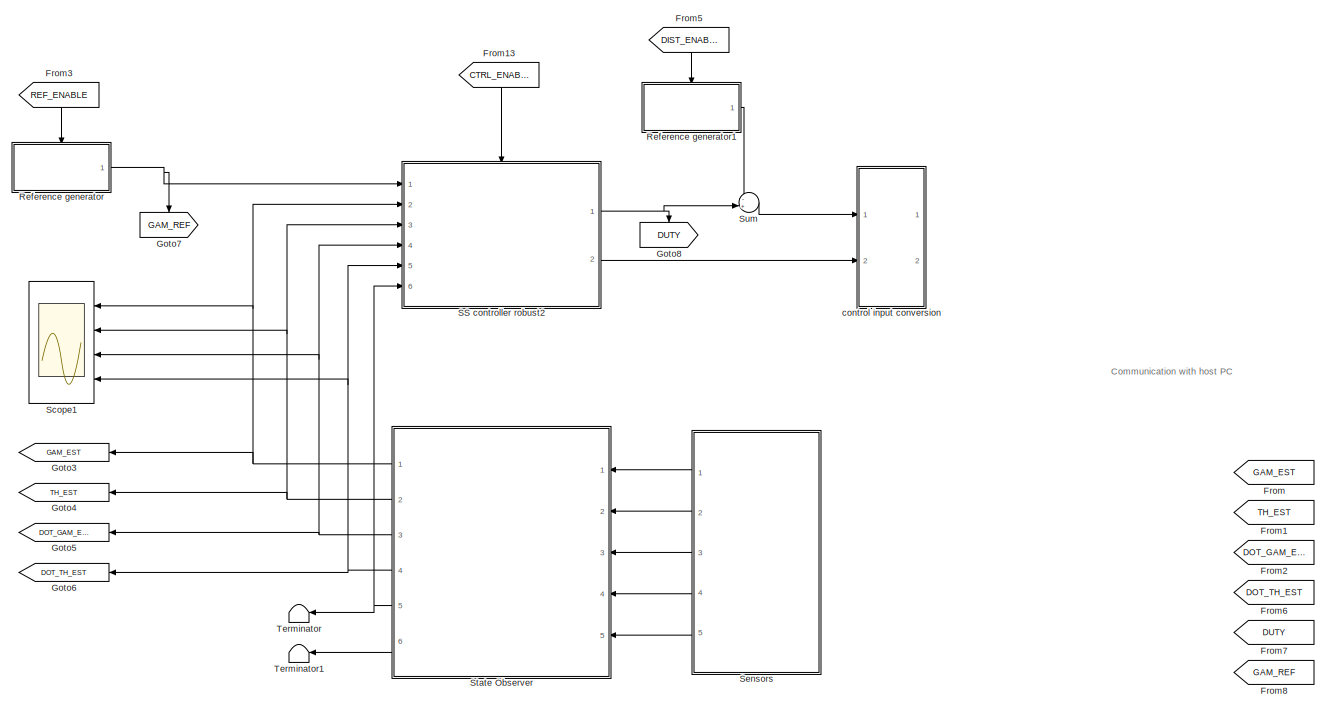
[diagram: root canvas - part 1/2, top center region]
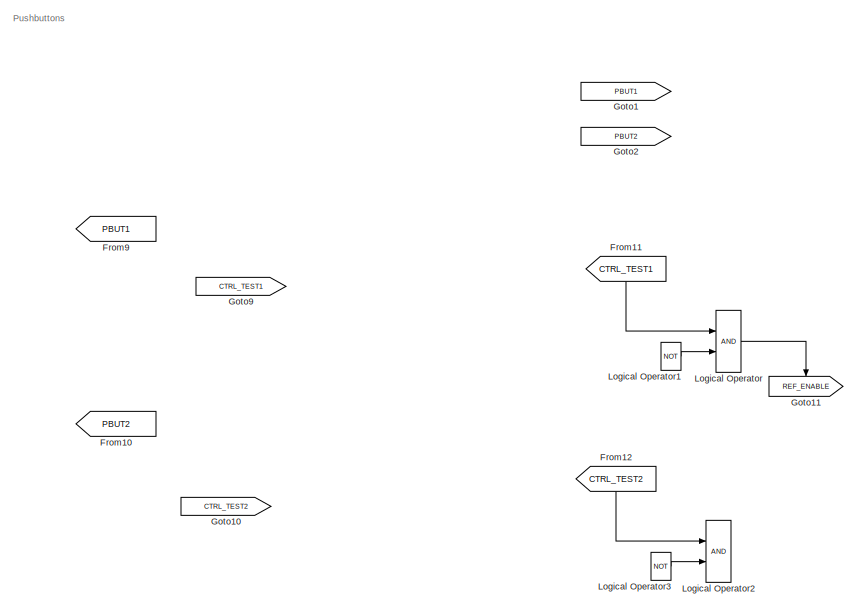
[diagram: root canvas - part 2/2, bottom left region]
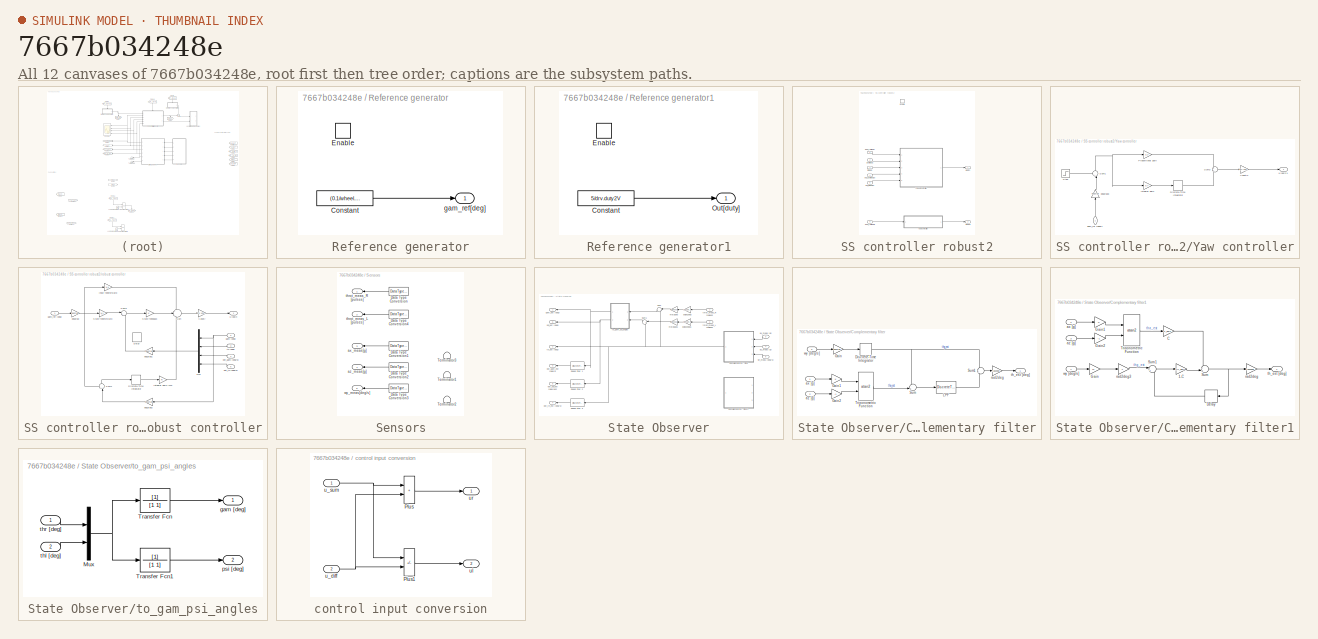
[diagram: thumbnail index - all 12 canvases of the model, root first then tree order]
MODEL slx_7667b034248e
KIND model
CONFIG AbsTol = auto
CONFIG EnableMultiTasking = off
CONFIG FixedStep = auto
CONFIG MaxStep = auto
CONFIG MinStep = auto
CONFIG RelTol = 1e-3
CONFIG SampleTimeConstraint = Unconstrained
CONFIG SolverName = VariableStepAuto
CONFIG StartTime = 0.0
CONFIG StopTime = 10.0
BLOCK [From] From
  GotoTag = GAM_EST
BLOCK [From] From1
  GotoTag = TH_EST
BLOCK [From] From10
  GotoTag = PBUT2
  NameLocation = right
BLOCK [From] From11
  GotoTag = CTRL_TEST1
  NameLocation = right
BLOCK [From] From12
  GotoTag = CTRL_TEST2
  NameLocation = right
BLOCK [From] From13
  GotoTag = CTRL_ENABLE
  NameLocation = right
BLOCK [From] From2
  GotoTag = DOT_GAM_EST
BLOCK [From] From3
  GotoTag = REF_ENABLE
  NameLocation = right
BLOCK [From] From5
  GotoTag = DIST_ENABLE
  NameLocation = right
BLOCK [From] From6
  GotoTag = DOT_TH_EST
BLOCK [From] From7
  GotoTag = DUTY
BLOCK [From] From8
  GotoTag = GAM_REF
BLOCK [From] From9
  GotoTag = PBUT1
  NameLocation = right
BLOCK [Goto] Goto1
  GotoTag = PBUT1
BLOCK [Goto] Goto10
  GotoTag = CTRL_TEST2
BLOCK [Goto] Goto11
  GotoTag = REF_ENABLE
  NameLocation = left
BLOCK [Goto] Goto2
  GotoTag = PBUT2
BLOCK [Goto] Goto3
  GotoTag = GAM_EST
BLOCK [Goto] Goto4
  GotoTag = TH_EST
BLOCK [Goto] Goto5
  GotoTag = DOT_GAM_EST
BLOCK [Goto] Goto6
  GotoTag = DOT_TH_EST
BLOCK [Goto] Goto7
  GotoTag = GAM_REF
  NameLocation = left
BLOCK [Goto] Goto8
  GotoTag = DUTY
  NameLocation = left
BLOCK [Goto] Goto9
  GotoTag = CTRL_TEST1
BLOCK [Logic] Logical Operator
  AllPortsSameDT = off
  OutDataTypeStr = boolean
  Ports = [2, 1]
BLOCK [Logic] Logical Operator1
  AllPortsSameDT = off
  Inputs = 1
  Operator = NOT
  OutDataTypeStr = boolean
  Ports = [1, 1]
BLOCK [Logic] Logical Operator2
  AllPortsSameDT = off
  OutDataTypeStr = boolean
  Ports = [2, 1]
BLOCK [Logic] Logical Operator3
  AllPortsSameDT = off
  Inputs = 1
  Operator = NOT
  OutDataTypeStr = boolean
  Ports = [1, 1]
BLOCK [SubSystem] Reference generator
  Ports = [0, 1, 1]
  RequestExecContextInheritance = off
BLOCK [Constant] Reference generator/Constant
  Value = (0.1/wheel.r)*rad2deg
BLOCK [EnablePort] Reference generator/Enable
  Ports = []
  StatesWhenEnabling = reset
BLOCK [Outport] Reference generator/gam_ref[deg]
BLOCK [SubSystem] Reference generator1
  Ports = [0, 1, 1]
  RequestExecContextInheritance = off
BLOCK [Constant] Reference generator1/Constant
  Value = 5/drv.duty2V
BLOCK [EnablePort] Reference generator1/Enable
  Ports = []
  StatesWhenEnabling = reset
BLOCK [Outport] Reference generator1/Out[duty]
BLOCK [SubSystem] SS controller robust2
  Ports = [6, 2, 1]
  RequestExecContextInheritance = off
BLOCK [EnablePort] SS controller robust2/Enable
  Ports = []
BLOCK [SubSystem] SS controller robust2/Yaw controller
  Ports = [1, 1]
  RequestExecContextInheritance = off
BLOCK [DiscreteIntegrator] SS controller robust2/Yaw controller/Discrete-Time Integrator
  ICPrevOutput = DiscIntNeverNeededParam
  ICPrevScaledInput = DiscIntNeverNeededParam
  InitialConditionSetting = Auto
  Ports = [1, 1]
  SampleTime = -1
BLOCK [Gain] SS controller robust2/Yaw controller/Integral gain
  Gain = 0.7
BLOCK [Gain] SS controller robust2/Yaw controller/Proportional gain
  Gain = 3.3
BLOCK [Step] SS controller robust2/Yaw controller/Step
  After = 0
  SampleTime = 0
  Time = 0
BLOCK [Sum] SS controller robust2/Yaw controller/Sum1
  Inputs = +-|
  NameLocation = right
  Ports = [2, 1]
BLOCK [Sum] SS controller robust2/Yaw controller/Sum3
  Inputs = +|+
  Ports = [2, 1]
BLOCK [Gain] SS controller robust2/Yaw controller/V2duty1
  Gain = drv.V2duty
BLOCK [Gain] SS controller robust2/Yaw controller/deg2rad3
  Gain = deg2rad
  Multiplication = Matrix(u*K)
  NameLocation = right
BLOCK [Inport] SS controller robust2/Yaw controller/gam_ref [deg]1
  NameLocation = right
BLOCK [Outport] SS controller robust2/Yaw controller/u [duty]1
BLOCK [Inport] SS controller robust2/dot_gam [deg//s]
  Port = 4
BLOCK [Inport] SS controller robust2/dot_th [deg//s]
  Port = 5
BLOCK [Inport] SS controller robust2/gam [deg]
  Port = 2
BLOCK [Inport] SS controller robust2/gam_ref [deg]
BLOCK [Inport] SS controller robust2/gam_ref [deg]1
  Port = 6
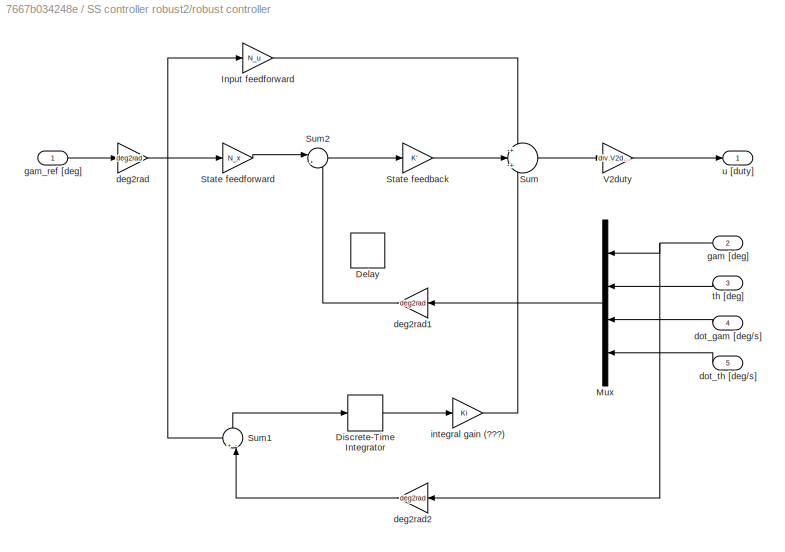
BLOCK [SubSystem] SS controller robust2/robust controller
  Ports = [5, 1]
  RequestExecContextInheritance = off
BLOCK [Delay] SS controller robust2/robust controller/Delay
  Commented = on
  DelayLength = 1
  InitialCondition = 0
  InputPortMap = u0
  NameLocation = right
  Ports = [1, 1]
BLOCK [DiscreteIntegrator] SS controller robust2/robust controller/Discrete-Time Integrator
  ICPrevOutput = DiscIntNeverNeededParam
  ICPrevScaledInput = DiscIntNeverNeededParam
  InitialConditionSetting = Auto
  Ports = [1, 1]
  SampleTime = 0.01
BLOCK [Gain] SS controller robust2/robust controller/Input feedforward
  Gain = N_u
BLOCK [Mux] SS controller robust2/robust controller/Mux
  DisplayOption = bar
  Ports = [4, 1]
BLOCK [Gain] SS controller robust2/robust controller/State feedback
  Gain = K'
  Multiplication = Matrix(u*K)
BLOCK [Gain] SS controller robust2/robust controller/State feedforward	
  Gain = N_x
  Multiplication = Matrix(u*K)
BLOCK [Sum] SS controller robust2/robust controller/Sum
  Inputs = +|+|+
  Ports = [3, 1]
BLOCK [Sum] SS controller robust2/robust controller/Sum1
  Inputs = +-|
  NameLocation = left
  Ports = [2, 1]
BLOCK [Sum] SS controller robust2/robust controller/Sum2
  Inputs = |+-
  Ports = [2, 1]
BLOCK [Gain] SS controller robust2/robust controller/V2duty
  Gain = drv.V2duty
BLOCK [Gain] SS controller robust2/robust controller/deg2rad
  Gain = deg2rad
BLOCK [Gain] SS controller robust2/robust controller/deg2rad1
  Gain = deg2rad
BLOCK [Gain] SS controller robust2/robust controller/deg2rad2
  Gain = deg2rad
BLOCK [Inport] SS controller robust2/robust controller/dot_gam [deg//s]
  Port = 4
BLOCK [Inport] SS controller robust2/robust controller/dot_th [deg//s]
  Port = 5
BLOCK [Inport] SS controller robust2/robust controller/gam [deg]
  Port = 2
BLOCK [Inport] SS controller robust2/robust controller/gam_ref [deg]
BLOCK [Gain] SS controller robust2/robust controller/integral gain (???)
  Gain = Ki
BLOCK [Inport] SS controller robust2/robust controller/th [deg]
  Port = 3
BLOCK [Outport] SS controller robust2/robust controller/u [duty]
BLOCK [Inport] SS controller robust2/th [deg]
  Port = 3
BLOCK [Outport] SS controller robust2/u [duty]
BLOCK [Outport] SS controller robust2/u [duty]1
  Port = 2
BLOCK [Scope] Scope1
  Floating = off
  NumInputPorts = 4
  Ports = [4]
  ScopeSpecificationString = Simulink.scopes.TimeScopeBlockCfg('CurrentConfiguration', extmgr.ConfigurationSet(extmgr.Configuration('Core','General UI',true),extmgr.Configuration('Core','Source UI',true),extmgr.Configuration('Sources','WiredSimulink',true,'DataLogging',true,'DataLoggingSaveFormat','StructureWithTime'),extmgr.Configuration('Visuals','Time Domain',true,'SerializedDisplays',{struct('MinYLimReal','-1314.10845','M...<+3526ch>
BLOCK [SubSystem] Sensors
  Ports = [0, 5]
  RequestExecContextInheritance = off
BLOCK [DataTypeConversion] Sensors/Data Type Conversion
  OutDataTypeStr = double
  RndMeth = Floor
  SaturateOnIntegerOverflow = off
BLOCK [DataTypeConversion] Sensors/Data Type Conversion1
  OutDataTypeStr = double
  RndMeth = Floor
  SaturateOnIntegerOverflow = off
BLOCK [DataTypeConversion] Sensors/Data Type Conversion2
  OutDataTypeStr = double
  RndMeth = Floor
  SaturateOnIntegerOverflow = off
BLOCK [DataTypeConversion] Sensors/Data Type Conversion3
  OutDataTypeStr = double
  RndMeth = Floor
  SaturateOnIntegerOverflow = off
BLOCK [DataTypeConversion] Sensors/Data Type Conversion4
  OutDataTypeStr = double
  RndMeth = Floor
  SaturateOnIntegerOverflow = off
BLOCK [Terminator] Sensors/Terminator1
BLOCK [Terminator] Sensors/Terminator2
BLOCK [Terminator] Sensors/Terminator3
BLOCK [Outport] Sensors/ax_meas[g]
  Port = 3
BLOCK [Outport] Sensors/az_meas[g]
  Port = 4
BLOCK [Outport] Sensors/throt_meas_L [pulses]
  Port = 2
BLOCK [Outport] Sensors/throt_meas_R [pulses]
BLOCK [Outport] Sensors/wy_meas[deg//s]
  Port = 5
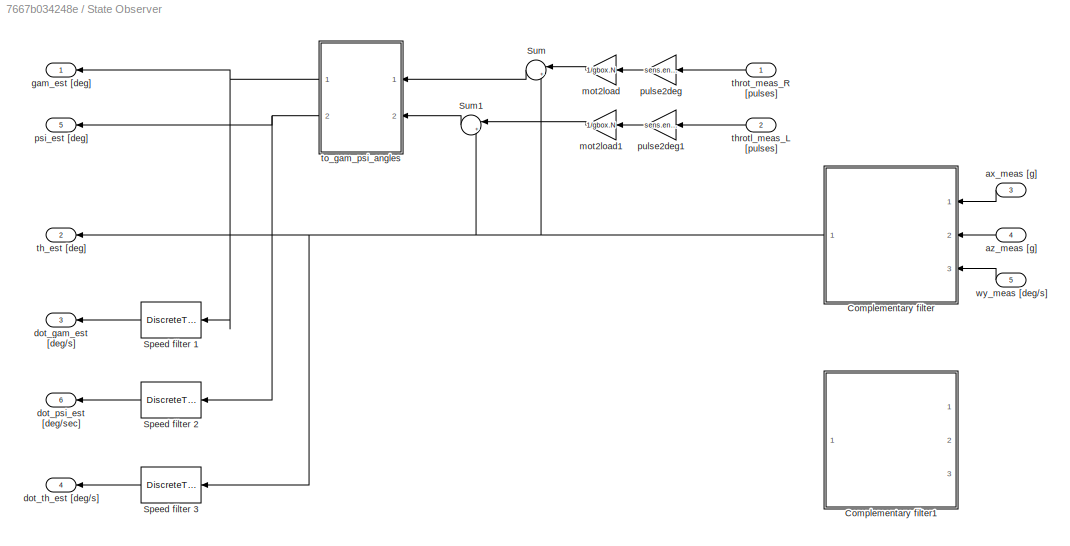
BLOCK [SubSystem] State Observer
  Ports = [5, 6]
  RequestExecContextInheritance = off
BLOCK [SubSystem] State Observer/Complementary filter
  Ports = [3, 1]
  RequestExecContextInheritance = off
BLOCK [DiscreteIntegrator] State Observer/Complementary filter/Discrete-Time Integrator
  ICPrevOutput = DiscIntNeverNeededParam
  ICPrevScaledInput = DiscIntNeverNeededParam
  InitialConditionSetting = Auto
  Ports = [1, 1]
  SampleTime = Ts
  gainval = 1
BLOCK [Gain] State Observer/Complementary filter/Gain
  Gain = deg2rad
BLOCK [Gain] State Observer/Complementary filter/Gain1
BLOCK [Gain] State Observer/Complementary filter/Gain2
  Gain = -1
BLOCK [DiscreteTransferFcn] State Observer/Complementary filter/LPF
  Denominator = [denLPFz]
  InputPortMap = u0
  Numerator = [numLPFz]
  Ports = [1, 1]
  SampleTime = Ts
BLOCK [Sum] State Observer/Complementary filter/Sum
  Inputs = -+|
  Ports = [2, 1]
BLOCK [Sum] State Observer/Complementary filter/Sum1
  Ports = [2, 1]
BLOCK [Trigonometry] State Observer/Complementary filter/Trigonometric Function
  Operator = atan2
  Ports = [2, 1]
BLOCK [Inport] State Observer/Complementary filter/ax [g] 
BLOCK [Inport] State Observer/Complementary filter/az [g] 
  Port = 2
BLOCK [Gain] State Observer/Complementary filter/rad2deg
  Gain = rad2deg
BLOCK [Outport] State Observer/Complementary filter/th_est [deg] 
BLOCK [Inport] State Observer/Complementary filter/wy [deg//s]
  Port = 3
BLOCK [SubSystem] State Observer/Complementary filter1
  Commented = on
  Ports = [3, 1]
  RequestExecContextInheritance = off
BLOCK [Gain] State Observer/Complementary filter1/1-C
  Gain = 1-C_gain
BLOCK [Gain] State Observer/Complementary filter1/C
  Gain = C_gain
BLOCK [Delay] State Observer/Complementary filter1/Delay
  DelayLength = 1
  InputPortMap = u0
  NameLocation = top
  Ports = [1, 1]
BLOCK [Gain] State Observer/Complementary filter1/Gain
  Gain = 11
BLOCK [Gain] State Observer/Complementary filter1/Gain1
BLOCK [Gain] State Observer/Complementary filter1/Gain2
  Gain = -1
BLOCK [Sum] State Observer/Complementary filter1/Sum
  Inputs = ++|
  Ports = [2, 1]
BLOCK [Sum] State Observer/Complementary filter1/Sum1
  Inputs = |++
  Ports = [2, 1]
BLOCK [Trigonometry] State Observer/Complementary filter1/Trigonometric Function
  Operator = atan2
  Ports = [2, 1]
BLOCK [Inport] State Observer/Complementary filter1/ax [g] 
  Port = 2
BLOCK [Inport] State Observer/Complementary filter1/az [g] 
  Port = 3
BLOCK [Gain] State Observer/Complementary filter1/rad2deg
  Gain = rad2deg
BLOCK [Gain] State Observer/Complementary filter1/rad2deg3
  Gain = T
BLOCK [Outport] State Observer/Complementary filter1/th_est [deg] 
BLOCK [Inport] State Observer/Complementary filter1/wy [deg//s]
BLOCK [DiscreteTransferFcn] State Observer/Speed filter 1
  Denominator = [denHw]
  InputPortMap = u0
  Numerator = [numHw]
  Ports = [1, 1]
  SampleTime = Ts
BLOCK [DiscreteTransferFcn] State Observer/Speed filter 2
  Denominator = [denHw]
  InputPortMap = u0
  Numerator = [numHw]
  Ports = [1, 1]
  SampleTime = Ts
BLOCK [DiscreteTransferFcn] State Observer/Speed filter 3
  Denominator = [denHw]
  InputPortMap = u0
  Numerator = [numHw]
  Ports = [1, 1]
  SampleTime = Ts
BLOCK [Sum] State Observer/Sum
  Inputs = |++
  NameLocation = top
  Ports = [2, 1]
BLOCK [Sum] State Observer/Sum1
  Inputs = |++
  NameLocation = top
  Ports = [2, 1]
BLOCK [Inport] State Observer/ax_meas [g] 
  Port = 3
BLOCK [Inport] State Observer/az_meas [g] 
  Port = 4
BLOCK [Outport] State Observer/dot_gam_est [deg//s]
  Port = 3
BLOCK [Outport] State Observer/dot_psi_est [deg//sec]
  Port = 6
BLOCK [Outport] State Observer/dot_th_est [deg//s]
  Port = 4
BLOCK [Outport] State Observer/gam_est [deg]
BLOCK [Gain] State Observer/mot2load
  Gain = 1/gbox.N
BLOCK [Gain] State Observer/mot2load1
  Gain = 1/gbox.N
BLOCK [Outport] State Observer/psi_est [deg]
  Port = 5
BLOCK [Gain] State Observer/pulse2deg
  Gain = sens.enc.pulse2deg
BLOCK [Gain] State Observer/pulse2deg1
  Gain = sens.enc.pulse2deg
BLOCK [Outport] State Observer/th_est [deg]
  Port = 2
BLOCK [Inport] State Observer/throt_meas_R [pulses] 
BLOCK [Inport] State Observer/throtl_meas_L [pulses]
  Port = 2
BLOCK [SubSystem] State Observer/to_gam_psi_angles
  Ports = [2, 2]
  RequestExecContextInheritance = off
BLOCK [Mux] State Observer/to_gam_psi_angles/Mux
  DisplayOption = bar
  Inputs = 2
  Ports = [2, 1]
BLOCK [TransferFcn] State Observer/to_gam_psi_angles/Transfer Fcn
  Denominator = [1 1]
BLOCK [TransferFcn] State Observer/to_gam_psi_angles/Transfer Fcn1
  Denominator = [1 1]
BLOCK [Outport] State Observer/to_gam_psi_angles/gam [deg]
BLOCK [Outport] State Observer/to_gam_psi_angles/psi [deg]
  Port = 2
BLOCK [Inport] State Observer/to_gam_psi_angles/thl [deg]
  Port = 2
BLOCK [Inport] State Observer/to_gam_psi_angles/thr [deg]
BLOCK [Inport] State Observer/wy_meas [deg//s]
  Port = 5
BLOCK [Sum] Sum
  Inputs = -+|
  Ports = [2, 1]
BLOCK [Terminator] Terminator
BLOCK [Terminator] Terminator1
BLOCK [SubSystem] control input conversion
  Ports = [2, 2]
  RequestExecContextInheritance = off
BLOCK [Sum] control input conversion/Plus
  IconShape = rectangular
  Ports = [2, 1]
BLOCK [Sum] control input conversion/Plus1
  IconShape = rectangular
  Inputs = +-
  Ports = [2, 1]
BLOCK [Inport] control input conversion/u_diff
  Port = 2
BLOCK [Inport] control input conversion/u_sum
BLOCK [Outport] control input conversion/ul
  Port = 2
BLOCK [Outport] control input conversion/ur
ANNOTATION (root): Communication with host PC
ANNOTATION (root): Pushbuttons
LINE From11:1 -> Logical Operator:1
LINE From12:1 -> Logical Operator2:1
LINE From13:1 -> SS controller robust2:enable
LINE From3:1 -> Reference generator:enable
LINE From5:1 -> Reference generator1:enable
LINE Logical Operator1:1 -> Logical Operator:2
LINE Logical Operator3:1 -> Logical Operator2:2
LINE Logical Operator:1 -> Goto11:1
LINE Reference generator/Constant:1 -> Reference generator/gam_ref[deg]:1
LINE Reference generator1/Constant:1 -> Reference generator1/Out[duty]:1
LINE Reference generator1:1 -> Sum:1
NET Reference generator:1 -> Goto7:1, SS controller robust2:1
LINE SS controller robust2/Yaw controller/Discrete-Time Integrator:1 -> SS controller robust2/Yaw controller/Sum3:2
LINE SS controller robust2/Yaw controller/Integral gain:1 -> SS controller robust2/Yaw controller/Discrete-Time Integrator:1
LINE SS controller robust2/Yaw controller/Proportional gain:1 -> SS controller robust2/Yaw controller/Sum3:1
LINE SS controller robust2/Yaw controller/Step:1 -> SS controller robust2/Yaw controller/Sum1:1
NET SS controller robust2/Yaw controller/Sum1:1 -> SS controller robust2/Yaw controller/Integral gain:1, SS controller robust2/Yaw controller/Proportional gain:1
LINE SS controller robust2/Yaw controller/Sum3:1 -> SS controller robust2/Yaw controller/V2duty1:1
LINE SS controller robust2/Yaw controller/V2duty1:1 -> SS controller robust2/Yaw controller/u [duty]1:1
LINE SS controller robust2/Yaw controller/deg2rad3:1 -> SS controller robust2/Yaw controller/Sum1:2
LINE SS controller robust2/Yaw controller/gam_ref [deg]1:1 -> SS controller robust2/Yaw controller/deg2rad3:1
LINE SS controller robust2/Yaw controller:1 -> SS controller robust2/u [duty]1:1
LINE SS controller robust2/dot_gam [deg//s]:1 -> SS controller robust2/robust controller:4
LINE SS controller robust2/dot_th [deg//s]:1 -> SS controller robust2/robust controller:5
LINE SS controller robust2/gam [deg]:1 -> SS controller robust2/robust controller:2
LINE SS controller robust2/gam_ref [deg]1:1 -> SS controller robust2/Yaw controller:1
LINE SS controller robust2/gam_ref [deg]:1 -> SS controller robust2/robust controller:1
LINE SS controller robust2/robust controller/Discrete-Time Integrator:1 -> SS controller robust2/robust controller/integral gain (???):1
LINE SS controller robust2/robust controller/Input feedforward:1 -> SS controller robust2/robust controller/Sum:1
LINE SS controller robust2/robust controller/Mux:1 -> SS controller robust2/robust controller/deg2rad1:1
LINE SS controller robust2/robust controller/State feedback:1 -> SS controller robust2/robust controller/Sum:2
LINE SS controller robust2/robust controller/State feedforward	:1 -> SS controller robust2/robust controller/Sum2:1
LINE SS controller robust2/robust controller/Sum1:1 -> SS controller robust2/robust controller/Discrete-Time Integrator:1
LINE SS controller robust2/robust controller/Sum2:1 -> SS controller robust2/robust controller/State feedback:1
LINE SS controller robust2/robust controller/Sum:1 -> SS controller robust2/robust controller/V2duty:1
LINE SS controller robust2/robust controller/V2duty:1 -> SS controller robust2/robust controller/u [duty]:1
LINE SS controller robust2/robust controller/deg2rad1:1 -> SS controller robust2/robust controller/Sum2:2
LINE SS controller robust2/robust controller/deg2rad2:1 -> SS controller robust2/robust controller/Sum1:2
NET SS controller robust2/robust controller/deg2rad:1 -> SS controller robust2/robust controller/Input feedforward:1, SS controller robust2/robust controller/State feedforward	:1, SS controller robust2/robust controller/Sum1:1
LINE SS controller robust2/robust controller/dot_gam [deg//s]:1 -> SS controller robust2/robust controller/Mux:3
LINE SS controller robust2/robust controller/dot_th [deg//s]:1 -> SS controller robust2/robust controller/Mux:4
NET SS controller robust2/robust controller/gam [deg]:1 -> SS controller robust2/robust controller/Mux:1, SS controller robust2/robust controller/deg2rad2:1
LINE SS controller robust2/robust controller/gam_ref [deg]:1 -> SS controller robust2/robust controller/deg2rad:1
LINE SS controller robust2/robust controller/integral gain (???):1 -> SS controller robust2/robust controller/Sum:3
LINE SS controller robust2/robust controller/th [deg]:1 -> SS controller robust2/robust controller/Mux:2
LINE SS controller robust2/robust controller:1 -> SS controller robust2/u [duty]:1
LINE SS controller robust2/th [deg]:1 -> SS controller robust2/robust controller:3
NET SS controller robust2:1 -> Goto8:1, Sum:2
LINE SS controller robust2:2 -> control input conversion:2
LINE Sensors/Data Type Conversion1:1 -> Sensors/ax_meas[g]:1
LINE Sensors/Data Type Conversion2:1 -> Sensors/az_meas[g]:1
LINE Sensors/Data Type Conversion3:1 -> Sensors/wy_meas[deg//s]:1
LINE Sensors/Data Type Conversion4:1 -> Sensors/throt_meas_L [pulses]:1
LINE Sensors/Data Type Conversion:1 -> Sensors/throt_meas_R [pulses]:1
LINE Sensors:1 -> State Observer:1
LINE Sensors:2 -> State Observer:2
LINE Sensors:3 -> State Observer:3
LINE Sensors:4 -> State Observer:4
LINE Sensors:5 -> State Observer:5
NET State Observer/Complementary filter/Discrete-Time Integrator:1 -> State Observer/Complementary filter/Sum1:1, State Observer/Complementary filter/Sum:1
LINE State Observer/Complementary filter/Gain1:1 -> State Observer/Complementary filter/Trigonometric Function:1
LINE State Observer/Complementary filter/Gain2:1 -> State Observer/Complementary filter/Trigonometric Function:2
LINE State Observer/Complementary filter/Gain:1 -> State Observer/Complementary filter/Discrete-Time Integrator:1
LINE State Observer/Complementary filter/LPF:1 -> State Observer/Complementary filter/Sum1:2
LINE State Observer/Complementary filter/Sum1:1 -> State Observer/Complementary filter/rad2deg:1
LINE State Observer/Complementary filter/Sum:1 -> State Observer/Complementary filter/LPF:1
LINE State Observer/Complementary filter/Trigonometric Function:1 -> State Observer/Complementary filter/Sum:2
LINE State Observer/Complementary filter/ax [g] :1 -> State Observer/Complementary filter/Gain1:1
LINE State Observer/Complementary filter/az [g] :1 -> State Observer/Complementary filter/Gain2:1
LINE State Observer/Complementary filter/rad2deg:1 -> State Observer/Complementary filter/th_est [deg] :1
LINE State Observer/Complementary filter/wy [deg//s]:1 -> State Observer/Complementary filter/Gain:1
LINE State Observer/Complementary filter1/1-C:1 -> State Observer/Complementary filter1/Sum:2
LINE State Observer/Complementary filter1/C:1 -> State Observer/Complementary filter1/Sum:1
LINE State Observer/Complementary filter1/Delay:1 -> State Observer/Complementary filter1/Sum1:2
LINE State Observer/Complementary filter1/Gain1:1 -> State Observer/Complementary filter1/Trigonometric Function:1
LINE State Observer/Complementary filter1/Gain2:1 -> State Observer/Complementary filter1/Trigonometric Function:2
LINE State Observer/Complementary filter1/Gain:1 -> State Observer/Complementary filter1/rad2deg3:1
LINE State Observer/Complementary filter1/Sum1:1 -> State Observer/Complementary filter1/1-C:1
NET State Observer/Complementary filter1/Sum:1 -> State Observer/Complementary filter1/Delay:1, State Observer/Complementary filter1/rad2deg:1
LINE State Observer/Complementary filter1/Trigonometric Function:1 -> State Observer/Complementary filter1/C:1
LINE State Observer/Complementary filter1/ax [g] :1 -> State Observer/Complementary filter1/Gain1:1
LINE State Observer/Complementary filter1/az [g] :1 -> State Observer/Complementary filter1/Gain2:1
LINE State Observer/Complementary filter1/rad2deg3:1 -> State Observer/Complementary filter1/Sum1:1
LINE State Observer/Complementary filter1/rad2deg:1 -> State Observer/Complementary filter1/th_est [deg] :1
LINE State Observer/Complementary filter1/wy [deg//s]:1 -> State Observer/Complementary filter1/Gain:1
NET State Observer/Complementary filter:1 -> State Observer/Speed filter 3:1, State Observer/Sum1:2, State Observer/Sum:2, State Observer/th_est [deg]:1
LINE State Observer/Speed filter 1:1 -> State Observer/dot_gam_est [deg//s]:1
LINE State Observer/Speed filter 2:1 -> State Observer/dot_psi_est [deg//sec]:1
LINE State Observer/Speed filter 3:1 -> State Observer/dot_th_est [deg//s]:1
LINE State Observer/Sum1:1 -> State Observer/to_gam_psi_angles:2
LINE State Observer/Sum:1 -> State Observer/to_gam_psi_angles:1
LINE State Observer/ax_meas [g] :1 -> State Observer/Complementary filter:1
LINE State Observer/az_meas [g] :1 -> State Observer/Complementary filter:2
LINE State Observer/mot2load1:1 -> State Observer/Sum1:1
LINE State Observer/mot2load:1 -> State Observer/Sum:1
LINE State Observer/pulse2deg1:1 -> State Observer/mot2load1:1
LINE State Observer/pulse2deg:1 -> State Observer/mot2load:1
LINE State Observer/throt_meas_R [pulses] :1 -> State Observer/pulse2deg:1
LINE State Observer/throtl_meas_L [pulses]:1 -> State Observer/pulse2deg1:1
NET State Observer/to_gam_psi_angles/Mux:1 -> State Observer/to_gam_psi_angles/Transfer Fcn1:1, State Observer/to_gam_psi_angles/Transfer Fcn:1
LINE State Observer/to_gam_psi_angles/Transfer Fcn1:1 -> State Observer/to_gam_psi_angles/psi [deg]:1
LINE State Observer/to_gam_psi_angles/Transfer Fcn:1 -> State Observer/to_gam_psi_angles/gam [deg]:1
LINE State Observer/to_gam_psi_angles/thl [deg]:1 -> State Observer/to_gam_psi_angles/Mux:2
LINE State Observer/to_gam_psi_angles/thr [deg]:1 -> State Observer/to_gam_psi_angles/Mux:1
NET State Observer/to_gam_psi_angles:1 -> State Observer/Speed filter 1:1, State Observer/gam_est [deg]:1
NET State Observer/to_gam_psi_angles:2 -> State Observer/Speed filter 2:1, State Observer/psi_est [deg]:1
LINE State Observer/wy_meas [deg//s]:1 -> State Observer/Complementary filter:3
NET State Observer:1 -> Goto3:1, SS controller robust2:2, Scope1:1
NET State Observer:2 -> Goto4:1, SS controller robust2:3, Scope1:2
NET State Observer:3 -> Goto5:1, SS controller robust2:4, Scope1:3
NET State Observer:4 -> Goto6:1, SS controller robust2:5, Scope1:4
NET State Observer:5 -> SS controller robust2:6, Terminator:1
LINE State Observer:6 -> Terminator1:1
LINE Sum:1 -> control input conversion:1
LINE control input conversion/Plus1:1 -> control input conversion/ul:1
LINE control input conversion/Plus:1 -> control input conversion/ur:1
NET control input conversion/u_diff:1 -> control input conversion/Plus1:2, control input conversion/Plus:2
NET control input conversion/u_sum:1 -> control input conversion/Plus1:1, control input conversion/Plus:1
note: NET lines group one-source signal fan-out (src -> all destinations, sorted); 1:1 wires keep LINE
